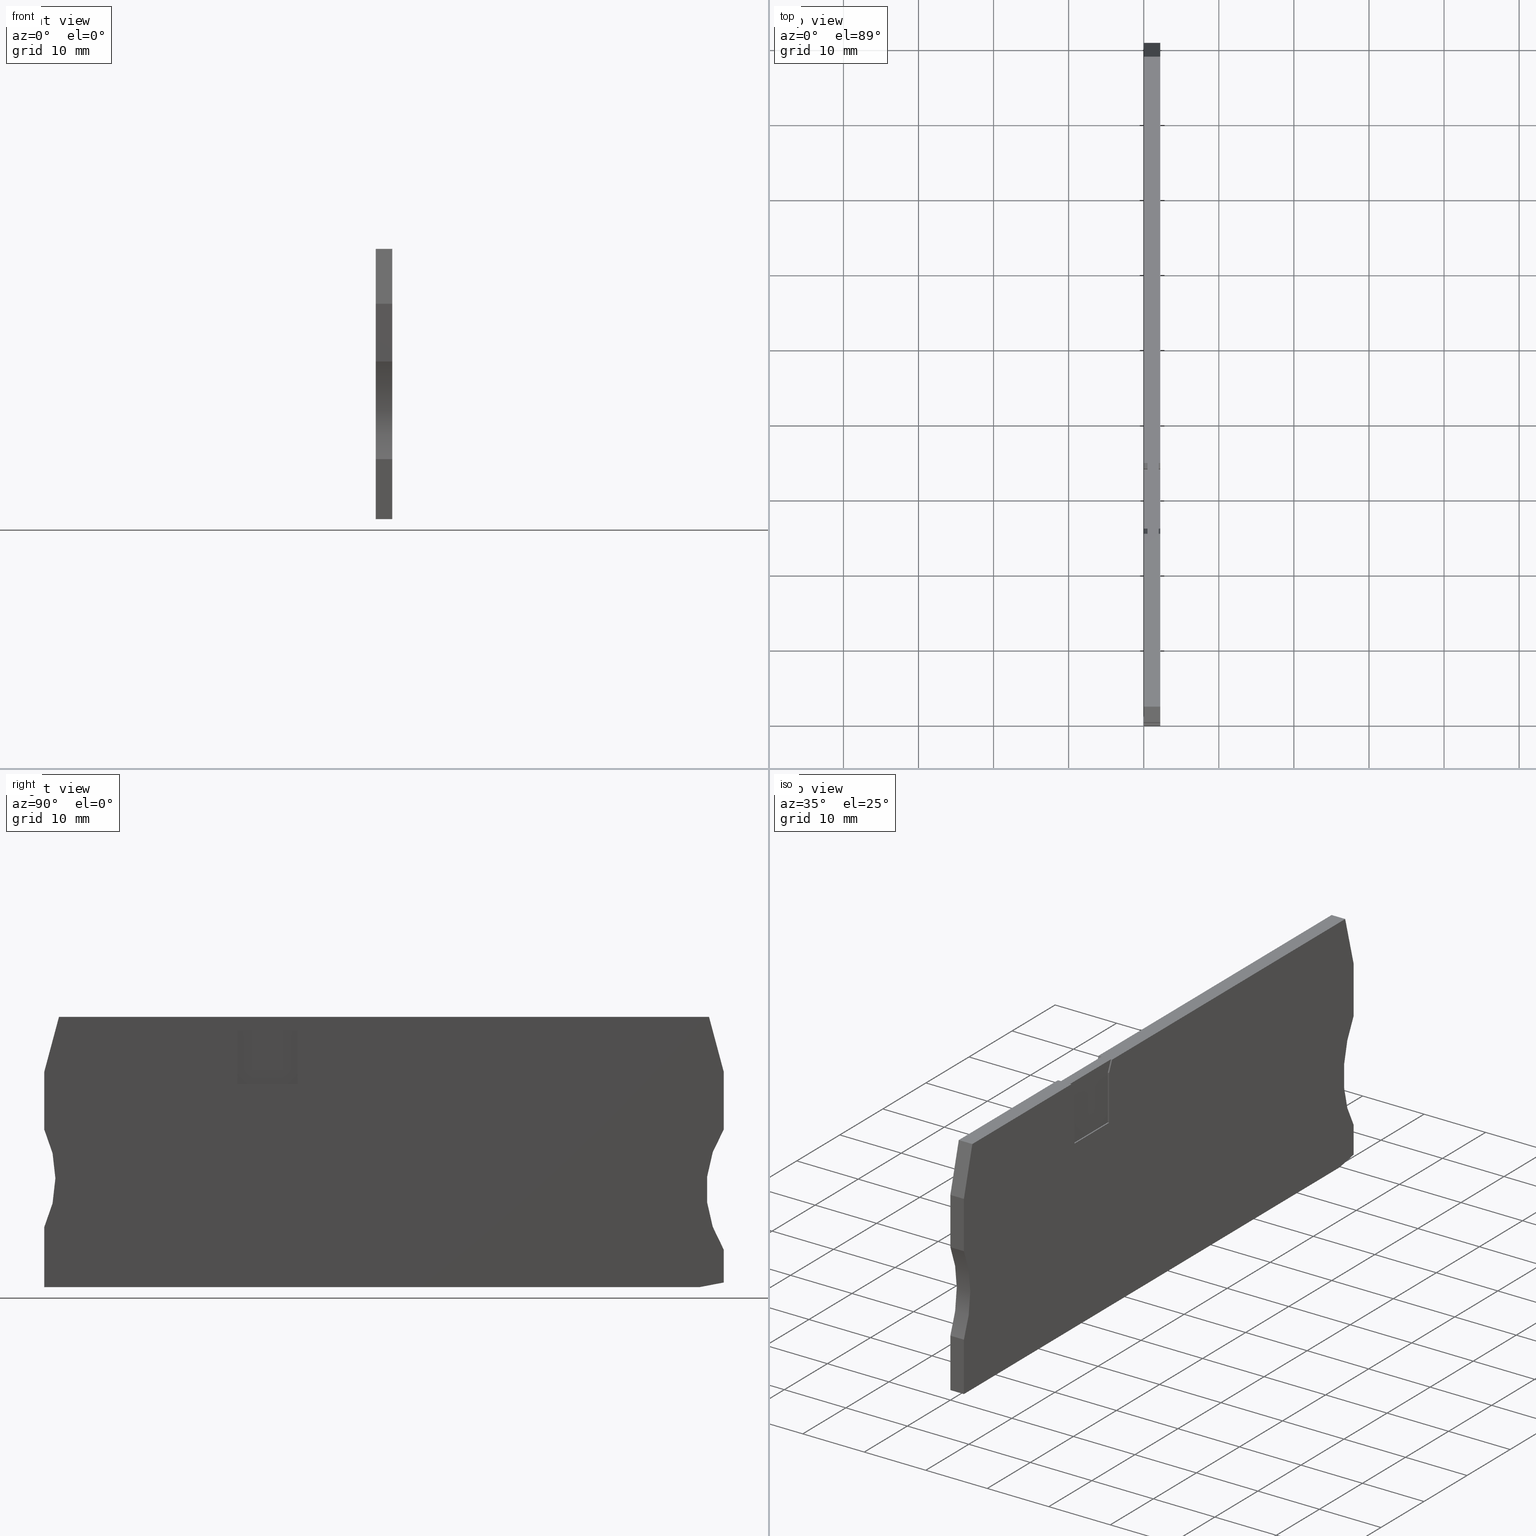
[diagram: canonical four-view strip — front | top / right | iso, engineering-drawing reading convention]
A machine part, canonical four-view strip (front | top / right | iso — engineering-drawing reading convention). The complete STEP part file that produces these views, byte-faithful:
ISO-10303-21;
HEADER;
FILE_DESCRIPTION(('Creo Elements/Direct Modeling STEP Export'),'2;1');
FILE_NAME(
'D:/temp/JobSpoolerServerData/JobServer Files/87b4124f-40e1-4de9-a269-f8
c5c639afc3/work/output/model.stp','2018-04-13T14:34:24',(''),(''),
'Creo Elements/Direct Modeling STEP processor for AP214 (Solid Model)',
'Creo Elements/Direct Modeling 18.1I  14-Aug-2016 (C) Parametric Technol
ogy GmbH','');
FILE_SCHEMA(('AUTOMOTIVE_DESIGN { 1 0 10303 214 1 1 1 1 }'));
ENDSEC;
DATA;
#10=CARTESIAN_POINT('',(-56.6917081414201,-5.44240052364707,55.87));
#20=DIRECTION('',(0.,0.,1.));
#30=DIRECTION('',(1.,0.,0.));
#40=AXIS2_PLACEMENT_3D('',#10,#20,#30);
#50=PLANE('',#40);
#60=CARTESIAN_POINT('',(0.932167221675279,-22.363129,55.87));
#70=DIRECTION('',(0.,1.,0.));
#80=VECTOR('',#70,1.);
#90=LINE('',#60,#80);
#100=CARTESIAN_POINT('',(0.932167221675279,-11.2000000000016,55.87));
#110=VERTEX_POINT('',#100);
#120=CARTESIAN_POINT('',(0.932167221675275,-3.90000000000191,55.87));
#130=VERTEX_POINT('',#120);
#140=EDGE_CURVE('',#110,#130,#90,.T.);
#150=ORIENTED_EDGE('',*,*,#140,.F.);
#160=CARTESIAN_POINT('',(-6.8712168983296,-22.363129,55.87));
#170=DIRECTION('',(0.389303997098191,0.92110933001646,0.));
#180=VECTOR('',#170,1.);
#190=LINE('',#160,#180);
#200=CARTESIAN_POINT('',(1.65066694098248,-2.19999999999897,55.87));
#210=VERTEX_POINT('',#200);
#220=EDGE_CURVE('',#130,#210,#190,.T.);
#230=ORIENTED_EDGE('',*,*,#220,.F.);
#240=CARTESIAN_POINT('',(31.631009,-2.19999999999897,55.87));
#250=DIRECTION('',(1.,0.,0.));
#260=VECTOR('',#250,1.);
#270=LINE('',#240,#260);
#280=CARTESIAN_POINT('',(55.771972992329,-2.19999999999897,55.87));
#290=VERTEX_POINT('',#280);
#300=EDGE_CURVE('',#210,#290,#270,.T.);
#310=ORIENTED_EDGE('',*,*,#300,.F.);
#320=CARTESIAN_POINT('',(61.1746671247789,-22.363129,55.87));
#330=DIRECTION('',(-0.258819045103196,0.965925826288887,0.));
#340=VECTOR('',#330,1.);
#350=LINE('',#320,#340);
#360=CARTESIAN_POINT('',(57.7321672216756,-9.51554445660334,55.87));
#370=VERTEX_POINT('',#360);
#380=EDGE_CURVE('',#370,#290,#350,.T.);
#390=ORIENTED_EDGE('',*,*,#380,.T.);
#400=CARTESIAN_POINT('',(57.7321672216756,-22.363129,55.87));
#410=DIRECTION('',(0.,-1.,0.));
#420=VECTOR('',#410,1.);
#430=LINE('',#400,#420);
#440=CARTESIAN_POINT('',(57.7321672216756,-17.2000000000024,55.87));
#450=VERTEX_POINT('',#440);
#460=EDGE_CURVE('',#370,#450,#430,.T.);
#470=ORIENTED_EDGE('',*,*,#460,.F.);
#480=CARTESIAN_POINT('',(70.4207447621217,-25.2000000000011,55.87));
#490=DIRECTION('',(0.,0.,1.));
#500=DIRECTION('',(1.,0.,0.));
#510=AXIS2_PLACEMENT_3D('',#480,#490,#500);
#520=CIRCLE('',#510,14.9999999999964);
#530=CARTESIAN_POINT('',(57.7321672216756,-33.1999999999997,55.87));
#540=VERTEX_POINT('',#530);
#550=EDGE_CURVE('',#450,#540,#520,.T.);
#560=ORIENTED_EDGE('',*,*,#550,.F.);
#570=CARTESIAN_POINT('',(57.7321672216756,-22.363129,55.87));
#580=DIRECTION('',(0.,1.,0.));
#590=VECTOR('',#580,1.);
#600=LINE('',#570,#590);
#610=CARTESIAN_POINT('',(57.7321672216756,-37.5829787234045,55.87));
#620=VERTEX_POINT('',#610);
#630=EDGE_CURVE('',#620,#540,#600,.T.);
#640=ORIENTED_EDGE('',*,*,#630,.T.);
#650=CARTESIAN_POINT('',(31.631009,-42.5810728509603,55.87));
#660=DIRECTION('',(0.98215519189214,0.188072270787892,0.));
#670=VECTOR('',#660,1.);
#680=LINE('',#650,#670);
#690=CARTESIAN_POINT('',(54.5099449994476,-38.2000000000014,55.87));
#700=VERTEX_POINT('',#690);
#710=EDGE_CURVE('',#700,#620,#680,.T.);
#720=ORIENTED_EDGE('',*,*,#710,.T.);
#730=CARTESIAN_POINT('',(31.631009,-38.2000000000014,55.87));
#740=DIRECTION('',(-1.,0.,0.));
#750=VECTOR('',#740,1.);
#760=LINE('',#730,#750);
#770=CARTESIAN_POINT('',(-32.767832778325,-38.2000000000014,55.87));
#780=VERTEX_POINT('',#770);
#790=EDGE_CURVE('',#700,#780,#760,.T.);
#800=ORIENTED_EDGE('',*,*,#790,.F.);
#810=CARTESIAN_POINT('',(-32.767832778325,-22.363129,55.87));
#820=DIRECTION('',(0.,1.,0.));
#830=VECTOR('',#820,1.);
#840=LINE('',#810,#830);
#850=CARTESIAN_POINT('',(-32.767832778325,-30.2000000000029,55.87));
#860=VERTEX_POINT('',#850);
#870=EDGE_CURVE('',#780,#860,#840,.T.);
#880=ORIENTED_EDGE('',*,*,#870,.F.);
#890=CARTESIAN_POINT('',(-46.2863386129204,-23.7000000000014,55.87));
#900=DIRECTION('',(0.,0.,1.));
#910=DIRECTION('',(1.,0.,0.));
#920=AXIS2_PLACEMENT_3D('',#890,#900,#910);
#930=CIRCLE('',#920,15.0000000000002);
#940=CARTESIAN_POINT('',(-32.767832778325,-17.1999999999999,55.87));
#950=VERTEX_POINT('',#940);
#960=EDGE_CURVE('',#860,#950,#930,.T.);
#970=ORIENTED_EDGE('',*,*,#960,.F.);
#980=CARTESIAN_POINT('',(-32.767832778325,-22.363129,55.87));
#990=DIRECTION('',(0.,1.,0.));
#1000=VECTOR('',#990,1.);
#1010=LINE('',#980,#1000);
#1020=CARTESIAN_POINT('',(-32.767832778325,-9.51554445660951,55.87));
#1030=VERTEX_POINT('',#1020);
#1040=EDGE_CURVE('',#950,#1030,#1010,.T.);
#1050=ORIENTED_EDGE('',*,*,#1040,.F.);
#1060=CARTESIAN_POINT('',(-36.2103326814236,-22.363129,55.87));
#1070=DIRECTION('',(-0.258819045102977,-0.965925826288946,0.));
#1080=VECTOR('',#1070,1.);
#1090=LINE('',#1060,#1080);
#1100=CARTESIAN_POINT('',(-30.8076385489786,-2.19999999999896,55.87));
#1110=VERTEX_POINT('',#1100);
#1120=EDGE_CURVE('',#1110,#1030,#1090,.T.);
#1130=ORIENTED_EDGE('',*,*,#1120,.T.);
#1140=CARTESIAN_POINT('',(-7.78633249760621,-2.19999999999896,55.87));
#1150=VERTEX_POINT('',#1140);
#1160=EDGE_CURVE('',#1110,#1150,#270,.T.);
#1170=ORIENTED_EDGE('',*,*,#1160,.F.);
#1180=CARTESIAN_POINT('',(0.735551341396391,-22.363129,55.87));
#1190=DIRECTION('',(0.389303997086196,-0.92110933002153,0.));
#1200=VECTOR('',#1190,1.);
#1210=LINE('',#1180,#1200);
#1220=CARTESIAN_POINT('',(-7.0678327783245,-3.90000000000332,55.87));
#1230=VERTEX_POINT('',#1220);
#1240=EDGE_CURVE('',#1150,#1230,#1210,.T.);
#1250=ORIENTED_EDGE('',*,*,#1240,.F.);
#1260=CARTESIAN_POINT('',(-7.0678327783245,-22.363129,55.87));
#1270=DIRECTION('',(0.,-1.,0.));
#1280=VECTOR('',#1270,1.);
#1290=LINE('',#1260,#1280);
#1300=CARTESIAN_POINT('',(-7.0678327783245,-11.2000000000016,55.87));
#1310=VERTEX_POINT('',#1300);
#1320=EDGE_CURVE('',#1230,#1310,#1290,.T.);
#1330=ORIENTED_EDGE('',*,*,#1320,.F.);
#1340=CARTESIAN_POINT('',(31.631009,-11.2000000000016,55.87));
#1350=DIRECTION('',(1.,0.,0.));
#1360=VECTOR('',#1350,1.);
#1370=LINE('',#1340,#1360);
#1380=EDGE_CURVE('',#1310,#110,#1370,.T.);
#1390=ORIENTED_EDGE('',*,*,#1380,.F.);
#1400=EDGE_LOOP('',(#1390,#1330,#1250,#1170,#1130,#1050,#970,#880,#800,
#720,#640,#560,#470,#390,#310,#230,#150));
#1410=FACE_OUTER_BOUND('',#1400,.T.);
#1420=ADVANCED_FACE('',(#1410),#50,.T.);
#1430=COLOUR_RGB('',0.560784339904785,0.588235318660736,
0.600000023841858);
#1440=FILL_AREA_STYLE_COLOUR('',#1430);
#1450=FILL_AREA_STYLE('',(#1440));
#1460=SURFACE_STYLE_FILL_AREA(#1450);
#1470=SURFACE_SIDE_STYLE('',(#1460));
#1480=SURFACE_STYLE_USAGE(.BOTH.,#1470);
#1490=PRESENTATION_STYLE_ASSIGNMENT((#1480));
#1500=CARTESIAN_POINT('',(-46.2863386129204,-23.7000000000014,53.4499976
));
#1510=DIRECTION('',(0.,0.,1.));
#1520=DIRECTION('',(1.,0.,0.));
#1530=AXIS2_PLACEMENT_3D('',#1500,#1510,#1520);
#1540=CYLINDRICAL_SURFACE('',#1530,15.0000000000002);
#1550=CARTESIAN_POINT('',(-32.767832778325,-17.1999999999999,53.4499976)
);
#1560=DIRECTION('',(0.,0.,1.));
#1570=VECTOR('',#1560,1.);
#1580=LINE('',#1550,#1570);
#1590=CARTESIAN_POINT('',(-32.767832778325,-17.1999999999999,53.67));
#1600=VERTEX_POINT('',#1590);
#1610=EDGE_CURVE('',#1600,#950,#1580,.T.);
#1620=ORIENTED_EDGE('',*,*,#1610,.F.);
#1630=ORIENTED_EDGE('',*,*,#960,.T.);
#1640=CARTESIAN_POINT('',(-32.767832778325,-30.2000000000029,53.4499976)
);
#1650=DIRECTION('',(0.,0.,1.));
#1660=VECTOR('',#1650,1.);
#1670=LINE('',#1640,#1660);
#1680=CARTESIAN_POINT('',(-32.767832778325,-30.2000000000029,53.67));
#1690=VERTEX_POINT('',#1680);
#1700=EDGE_CURVE('',#1690,#860,#1670,.T.);
#1710=ORIENTED_EDGE('',*,*,#1700,.T.);
#1720=CARTESIAN_POINT('',(-46.2863386129204,-23.7000000000014,53.67));
#1730=DIRECTION('',(0.,0.,1.));
#1740=DIRECTION('',(1.,0.,0.));
#1750=AXIS2_PLACEMENT_3D('',#1720,#1730,#1740);
#1760=CIRCLE('',#1750,15.0000000000002);
#1770=EDGE_CURVE('',#1690,#1600,#1760,.T.);
#1780=ORIENTED_EDGE('',*,*,#1770,.F.);
#1790=EDGE_LOOP('',(#1780,#1710,#1630,#1620));
#1800=FACE_OUTER_BOUND('',#1790,.T.);
#1810=ADVANCED_FACE('',(#1800),#1540,.F.);
#1820=COLOUR_RGB('',0.560784339904785,0.588235318660736,
0.600000023841858);
#1830=FILL_AREA_STYLE_COLOUR('',#1820);
#1840=FILL_AREA_STYLE('',(#1830));
#1850=SURFACE_STYLE_FILL_AREA(#1840);
#1860=SURFACE_SIDE_STYLE('',(#1850));
#1870=SURFACE_STYLE_USAGE(.BOTH.,#1860);
#1880=PRESENTATION_STYLE_ASSIGNMENT((#1870));
#1890=CARTESIAN_POINT('',(-7.0678327783245,-11.0000000000016,54.17));
#1900=DIRECTION('',(1.,0.,0.));
#1910=DIRECTION('',(0.,-1.,0.));
#1920=AXIS2_PLACEMENT_3D('',#1890,#1900,#1910);
#1930=PLANE('',#1920);
#1940=CARTESIAN_POINT('',(-7.0678327783245,-22.363129,54.17));
#1950=DIRECTION('',(0.,1.,0.));
#1960=VECTOR('',#1950,1.);
#1970=LINE('',#1940,#1960);
#1980=CARTESIAN_POINT('',(-7.0678327783245,-11.2000000000016,54.17));
#1990=VERTEX_POINT('',#1980);
#2000=CARTESIAN_POINT('',(-7.06783277832451,-3.90000000000332,54.17));
#2010=VERTEX_POINT('',#2000);
#2020=EDGE_CURVE('',#1990,#2010,#1970,.T.);
#2030=ORIENTED_EDGE('',*,*,#2020,.F.);
#2040=CARTESIAN_POINT('',(-7.0678327783245,-3.90000000000332,54.17));
#2050=DIRECTION('',(0.,0.,-1.));
#2060=VECTOR('',#2050,1.);
#2070=LINE('',#2040,#2060);
#2080=CARTESIAN_POINT('',(-7.06783277832451,-3.90000000000332,53.67));
#2090=VERTEX_POINT('',#2080);
#2100=EDGE_CURVE('',#2010,#2090,#2070,.T.);
#2110=ORIENTED_EDGE('',*,*,#2100,.F.);
#2120=CARTESIAN_POINT('',(-7.0678327783245,-22.363129,53.67));
#2130=DIRECTION('',(0.,-1.,0.));
#2140=VECTOR('',#2130,1.);
#2150=LINE('',#2120,#2140);
#2160=CARTESIAN_POINT('',(-7.0678327783245,-11.2000000000016,53.67));
#2170=VERTEX_POINT('',#2160);
#2180=EDGE_CURVE('',#2090,#2170,#2150,.T.);
#2190=ORIENTED_EDGE('',*,*,#2180,.F.);
#2200=CARTESIAN_POINT('',(-7.0678327783245,-11.2000000000016,53.67));
#2210=DIRECTION('',(0.,0.,1.));
#2220=VECTOR('',#2210,1.);
#2230=LINE('',#2200,#2220);
#2240=EDGE_CURVE('',#2170,#1990,#2230,.T.);
#2250=ORIENTED_EDGE('',*,*,#2240,.F.);
#2260=EDGE_LOOP('',(#2250,#2190,#2110,#2030));
#2270=FACE_OUTER_BOUND('',#2260,.T.);
#2280=ADVANCED_FACE('',(#2270),#1930,.T.);
#2290=COLOUR_RGB('',0.560784339904785,0.588235318660736,
0.600000023841858);
#2300=FILL_AREA_STYLE_COLOUR('',#2290);
#2310=FILL_AREA_STYLE('',(#2300));
#2320=SURFACE_STYLE_FILL_AREA(#2310);
#2330=SURFACE_SIDE_STYLE('',(#2320));
#2340=SURFACE_STYLE_USAGE(.BOTH.,#2330);
#2350=PRESENTATION_STYLE_ASSIGNMENT((#2340));
#2360=CARTESIAN_POINT('',(1.98753027032264,-18.8101307716224,53.67));
#2370=DIRECTION('',(0.,0.,-1.));
#2380=DIRECTION('',(-1.,0.,0.));
#2390=AXIS2_PLACEMENT_3D('',#2360,#2370,#2380);
#2400=PLANE('',#2390);
#2410=CARTESIAN_POINT('',(31.631009,-38.2000000000014,53.67));
#2420=DIRECTION('',(1.,0.,0.));
#2430=VECTOR('',#2420,1.);
#2440=LINE('',#2410,#2430);
#2450=CARTESIAN_POINT('',(-32.767832778325,-38.2000000000014,53.67));
#2460=VERTEX_POINT('',#2450);
#2470=CARTESIAN_POINT('',(54.5099449994476,-38.2000000000014,53.67));
#2480=VERTEX_POINT('',#2470);
#2490=EDGE_CURVE('',#2460,#2480,#2440,.T.);
#2500=ORIENTED_EDGE('',*,*,#2490,.F.);
#2510=CARTESIAN_POINT('',(31.631009,-42.5810728509603,53.67));
#2520=DIRECTION('',(-0.98215519189214,-0.188072270787892,0.));
#2530=VECTOR('',#2520,1.);
#2540=LINE('',#2510,#2530);
#2550=CARTESIAN_POINT('',(57.7321672216756,-37.5829787234045,53.67));
#2560=VERTEX_POINT('',#2550);
#2570=EDGE_CURVE('',#2560,#2480,#2540,.T.);
#2580=ORIENTED_EDGE('',*,*,#2570,.T.);
#2590=CARTESIAN_POINT('',(57.7321672216756,-22.363129,53.67));
#2600=DIRECTION('',(0.,-1.,0.));
#2610=VECTOR('',#2600,1.);
#2620=LINE('',#2590,#2610);
#2630=CARTESIAN_POINT('',(57.7321672216756,-33.1999999999997,53.67));
#2640=VERTEX_POINT('',#2630);
#2650=EDGE_CURVE('',#2640,#2560,#2620,.T.);
#2660=ORIENTED_EDGE('',*,*,#2650,.T.);
#2670=CARTESIAN_POINT('',(70.4207447621217,-25.2000000000011,53.67));
#2680=DIRECTION('',(0.,0.,1.));
#2690=DIRECTION('',(1.,0.,0.));
#2700=AXIS2_PLACEMENT_3D('',#2670,#2680,#2690);
#2710=CIRCLE('',#2700,14.9999999999964);
#2720=CARTESIAN_POINT('',(57.7321672216756,-17.2000000000024,53.67));
#2730=VERTEX_POINT('',#2720);
#2740=EDGE_CURVE('',#2730,#2640,#2710,.T.);
#2750=ORIENTED_EDGE('',*,*,#2740,.T.);
#2760=CARTESIAN_POINT('',(57.7321672216756,-22.363129,53.67));
#2770=DIRECTION('',(0.,1.,0.));
#2780=VECTOR('',#2770,1.);
#2790=LINE('',#2760,#2780);
#2800=CARTESIAN_POINT('',(57.7321672216756,-9.51554445660332,53.67));
#2810=VERTEX_POINT('',#2800);
#2820=EDGE_CURVE('',#2730,#2810,#2790,.T.);
#2830=ORIENTED_EDGE('',*,*,#2820,.F.);
#2840=CARTESIAN_POINT('',(61.1746671247789,-22.363129,53.67));
#2850=DIRECTION('',(0.258819045103196,-0.965925826288887,0.));
#2860=VECTOR('',#2850,1.);
#2870=LINE('',#2840,#2860);
#2880=CARTESIAN_POINT('',(55.771972992329,-2.19999999999897,53.67));
#2890=VERTEX_POINT('',#2880);
#2900=EDGE_CURVE('',#2890,#2810,#2870,.T.);
#2910=ORIENTED_EDGE('',*,*,#2900,.T.);
#2920=CARTESIAN_POINT('',(31.631009,-2.19999999999897,53.67));
#2930=DIRECTION('',(-1.,0.,0.));
#2940=VECTOR('',#2930,1.);
#2950=LINE('',#2920,#2940);
#2960=CARTESIAN_POINT('',(1.65066694098248,-2.19999999999897,53.67));
#2970=VERTEX_POINT('',#2960);
#2980=EDGE_CURVE('',#2890,#2970,#2950,.T.);
#2990=ORIENTED_EDGE('',*,*,#2980,.F.);
#3000=CARTESIAN_POINT('',(-6.8712168983296,-22.363129,53.67));
#3010=DIRECTION('',(0.389303997098191,0.92110933001646,0.));
#3020=VECTOR('',#3010,1.);
#3030=LINE('',#3000,#3020);
#3040=CARTESIAN_POINT('',(0.932167221675279,-3.90000000000325,53.67));
#3050=VERTEX_POINT('',#3040);
#3060=EDGE_CURVE('',#3050,#2970,#3030,.T.);
#3070=ORIENTED_EDGE('',*,*,#3060,.T.);
#3080=CARTESIAN_POINT('',(0.932167221675279,-22.363129,53.67));
#3090=DIRECTION('',(0.,1.,0.));
#3100=VECTOR('',#3090,1.);
#3110=LINE('',#3080,#3100);
#3120=CARTESIAN_POINT('',(0.932167221675279,-11.2000000000016,53.67));
#3130=VERTEX_POINT('',#3120);
#3140=EDGE_CURVE('',#3130,#3050,#3110,.T.);
#3150=ORIENTED_EDGE('',*,*,#3140,.T.);
#3160=CARTESIAN_POINT('',(31.631009,-11.2000000000016,53.67));
#3170=DIRECTION('',(1.,0.,0.));
#3180=VECTOR('',#3170,1.);
#3190=LINE('',#3160,#3180);
#3200=EDGE_CURVE('',#2170,#3130,#3190,.T.);
#3210=ORIENTED_EDGE('',*,*,#3200,.T.);
#3220=ORIENTED_EDGE('',*,*,#2180,.T.);
#3230=CARTESIAN_POINT('',(0.735551341396391,-22.363129,53.67));
#3240=DIRECTION('',(0.389303997086196,-0.92110933002153,0.));
#3250=VECTOR('',#3240,1.);
#3260=LINE('',#3230,#3250);
#3270=CARTESIAN_POINT('',(-7.78633249760621,-2.19999999999897,53.67));
#3280=VERTEX_POINT('',#3270);
#3290=EDGE_CURVE('',#3280,#2090,#3260,.T.);
#3300=ORIENTED_EDGE('',*,*,#3290,.T.);
#3310=CARTESIAN_POINT('',(-30.8076385489786,-2.19999999999896,53.67));
#3320=VERTEX_POINT('',#3310);
#3330=EDGE_CURVE('',#3280,#3320,#2950,.T.);
#3340=ORIENTED_EDGE('',*,*,#3330,.F.);
#3350=CARTESIAN_POINT('',(-36.2103326814236,-22.363129,53.67));
#3360=DIRECTION('',(0.258819045102977,0.965925826288946,0.));
#3370=VECTOR('',#3360,1.);
#3380=LINE('',#3350,#3370);
#3390=CARTESIAN_POINT('',(-32.767832778325,-9.51554445660954,53.67));
#3400=VERTEX_POINT('',#3390);
#3410=EDGE_CURVE('',#3400,#3320,#3380,.T.);
#3420=ORIENTED_EDGE('',*,*,#3410,.T.);
#3430=CARTESIAN_POINT('',(-32.767832778325,-22.363129,53.67));
#3440=DIRECTION('',(0.,-1.,0.));
#3450=VECTOR('',#3440,1.);
#3460=LINE('',#3430,#3450);
#3470=EDGE_CURVE('',#3400,#1600,#3460,.T.);
#3480=ORIENTED_EDGE('',*,*,#3470,.F.);
#3490=ORIENTED_EDGE('',*,*,#1770,.T.);
#3500=CARTESIAN_POINT('',(-32.767832778325,-22.363129,53.67));
#3510=DIRECTION('',(0.,-1.,0.));
#3520=VECTOR('',#3510,1.);
#3530=LINE('',#3500,#3520);
#3540=EDGE_CURVE('',#1690,#2460,#3530,.T.);
#3550=ORIENTED_EDGE('',*,*,#3540,.F.);
#3560=EDGE_LOOP('',(#3550,#3490,#3480,#3420,#3340,#3300,#3220,#3210,
#3150,#3070,#2990,#2910,#2830,#2750,#2660,#2580,#2500));
#3570=FACE_OUTER_BOUND('',#3560,.T.);
#3580=ADVANCED_FACE('',(#3570),#2400,.T.);
#3590=COLOUR_RGB('',0.560784339904785,0.588235318660736,
0.600000023841858);
#3600=FILL_AREA_STYLE_COLOUR('',#3590);
#3610=FILL_AREA_STYLE('',(#3600));
#3620=SURFACE_STYLE_FILL_AREA(#3610);
#3630=SURFACE_SIDE_STYLE('',(#3620));
#3640=SURFACE_STYLE_USAGE(.BOTH.,#3630);
#3650=PRESENTATION_STYLE_ASSIGNMENT((#3640));
#3660=CARTESIAN_POINT('',(47.6352266359532,-39.5164354313091,51.4699976)
);
#3670=DIRECTION('',(-0.188072270787892,0.98215519189214,0.));
#3680=DIRECTION('',(0.98215519189214,0.188072270787892,0.));
#3690=AXIS2_PLACEMENT_3D('',#3660,#3670,#3680);
#3700=PLANE('',#3690);
#3710=ORIENTED_EDGE('',*,*,#2570,.F.);
#3720=CARTESIAN_POINT('',(54.5099449994476,-38.2000000000014,53.67));
#3730=DIRECTION('',(0.,0.,-1.));
#3740=VECTOR('',#3730,1.);
#3750=LINE('',#3720,#3740);
#3760=EDGE_CURVE('',#700,#2480,#3750,.T.);
#3770=ORIENTED_EDGE('',*,*,#3760,.T.);
#3780=ORIENTED_EDGE('',*,*,#710,.F.);
#3790=CARTESIAN_POINT('',(57.7321672216756,-37.5829787234045,53.67));
#3800=DIRECTION('',(0.,0.,-1.));
#3810=VECTOR('',#3800,1.);
#3820=LINE('',#3790,#3810);
#3830=EDGE_CURVE('',#620,#2560,#3820,.T.);
#3840=ORIENTED_EDGE('',*,*,#3830,.F.);
#3850=EDGE_LOOP('',(#3840,#3780,#3770,#3710));
#3860=FACE_OUTER_BOUND('',#3850,.T.);
#3870=ADVANCED_FACE('',(#3860),#3700,.F.);
#3880=COLOUR_RGB('',0.560784339904785,0.588235318660736,
0.600000023841858);
#3890=FILL_AREA_STYLE_COLOUR('',#3880);
#3900=FILL_AREA_STYLE('',(#3890));
#3910=SURFACE_STYLE_FILL_AREA(#3900);
#3920=SURFACE_SIDE_STYLE('',(#3910));
#3930=SURFACE_STYLE_USAGE(.BOTH.,#3920);
#3940=PRESENTATION_STYLE_ASSIGNMENT((#3930));
#3950=CARTESIAN_POINT('',(-7.0678327783245,-3.90000000000332,54.17));
#3960=DIRECTION('',(0.92110933002153,0.389303997086196,0.));
#3970=DIRECTION('',(0.389303997086196,-0.92110933002153,0.));
#3980=AXIS2_PLACEMENT_3D('',#3950,#3960,#3970);
#3990=PLANE('',#3980);
#4000=CARTESIAN_POINT('',(-7.78633249760621,-2.19999999999897,53.67));
#4010=DIRECTION('',(0.,0.,-1.));
#4020=VECTOR('',#4010,1.);
#4030=LINE('',#4000,#4020);
#4040=CARTESIAN_POINT('',(-7.78633249760616,-2.19999999999908,54.17));
#4050=VERTEX_POINT('',#4040);
#4060=EDGE_CURVE('',#4050,#3280,#4030,.T.);
#4070=ORIENTED_EDGE('',*,*,#4060,.F.);
#4080=ORIENTED_EDGE('',*,*,#3290,.F.);
#4090=ORIENTED_EDGE('',*,*,#2100,.T.);
#4100=CARTESIAN_POINT('',(0.735551341396395,-22.363129,54.17));
#4110=DIRECTION('',(-0.389303997086196,0.92110933002153,0.));
#4120=VECTOR('',#4110,1.);
#4130=LINE('',#4100,#4120);
#4140=EDGE_CURVE('',#2010,#4050,#4130,.T.);
#4150=ORIENTED_EDGE('',*,*,#4140,.F.);
#4160=EDGE_LOOP('',(#4150,#4090,#4080,#4070));
#4170=FACE_OUTER_BOUND('',#4160,.T.);
#4180=ADVANCED_FACE('',(#4170),#3990,.T.);
#4190=COLOUR_RGB('',0.560784339904785,0.588235318660736,
0.600000023841858);
#4200=FILL_AREA_STYLE_COLOUR('',#4190);
#4210=FILL_AREA_STYLE('',(#4200));
#4220=SURFACE_STYLE_FILL_AREA(#4210);
#4230=SURFACE_SIDE_STYLE('',(#4220));
#4240=SURFACE_STYLE_USAGE(.BOTH.,#4230);
#4250=PRESENTATION_STYLE_ASSIGNMENT((#4240));
#4260=CARTESIAN_POINT('',(-3.06783277831202,-6.7000000000003,54.17));
#4270=DIRECTION('',(0.,0.,1.));
#4280=DIRECTION('',(1.,0.,0.));
#4290=AXIS2_PLACEMENT_3D('',#4260,#4270,#4280);
#4300=PLANE('',#4290);
#4310=CARTESIAN_POINT('',(31.631009,-11.2000000000016,54.17));
#4320=DIRECTION('',(-1.,0.,0.));
#4330=VECTOR('',#4320,1.);
#4340=LINE('',#4310,#4330);
#4350=CARTESIAN_POINT('',(0.932167221675279,-11.2000000000016,54.17));
#4360=VERTEX_POINT('',#4350);
#4370=EDGE_CURVE('',#4360,#1990,#4340,.T.);
#4380=ORIENTED_EDGE('',*,*,#4370,.T.);
#4390=CARTESIAN_POINT('',(0.932167221675279,-22.363129,54.17));
#4400=DIRECTION('',(0.,-1.,0.));
#4410=VECTOR('',#4400,1.);
#4420=LINE('',#4390,#4410);
#4430=CARTESIAN_POINT('',(0.932167221675279,-3.90000000000325,54.17));
#4440=VERTEX_POINT('',#4430);
#4450=EDGE_CURVE('',#4440,#4360,#4420,.T.);
#4460=ORIENTED_EDGE('',*,*,#4450,.T.);
#4470=CARTESIAN_POINT('',(-6.87121689832903,-22.363129,54.17));
#4480=DIRECTION('',(-0.389303997098191,-0.92110933001646,0.));
#4490=VECTOR('',#4480,1.);
#4500=LINE('',#4470,#4490);
#4510=CARTESIAN_POINT('',(1.65066694098248,-2.19999999999897,54.17));
#4520=VERTEX_POINT('',#4510);
#4530=EDGE_CURVE('',#4520,#4440,#4500,.T.);
#4540=ORIENTED_EDGE('',*,*,#4530,.T.);
#4550=CARTESIAN_POINT('',(31.631009,-2.19999999999897,54.17));
#4560=DIRECTION('',(1.,0.,0.));
#4570=VECTOR('',#4560,1.);
#4580=LINE('',#4550,#4570);
#4590=EDGE_CURVE('',#4050,#4520,#4580,.T.);
#4600=ORIENTED_EDGE('',*,*,#4590,.T.);
#4610=ORIENTED_EDGE('',*,*,#4140,.T.);
#4620=ORIENTED_EDGE('',*,*,#2020,.T.);
#4630=EDGE_LOOP('',(#4620,#4610,#4600,#4540,#4460,#4380));
#4640=FACE_OUTER_BOUND('',#4630,.T.);
#4650=ADVANCED_FACE('',(#4640),#4300,.F.);
#4660=COLOUR_RGB('',0.560784339904785,0.588235318660736,
0.600000023841858);
#4670=FILL_AREA_STYLE_COLOUR('',#4660);
#4680=FILL_AREA_STYLE('',(#4670));
#4690=SURFACE_STYLE_FILL_AREA(#4680);
#4700=SURFACE_SIDE_STYLE('',(#4690));
#4710=SURFACE_STYLE_USAGE(.BOTH.,#4700);
#4720=PRESENTATION_STYLE_ASSIGNMENT((#4710));
#4730=CARTESIAN_POINT('',(1.65066694098248,-2.19999999999897,54.17));
#4740=DIRECTION('',(-0.92110933001646,0.389303997098191,0.));
#4750=DIRECTION('',(0.389303997098191,0.92110933001646,0.));
#4760=AXIS2_PLACEMENT_3D('',#4730,#4740,#4750);
#4770=PLANE('',#4760);
#4780=CARTESIAN_POINT('',(0.932167221675279,-3.90000000000325,54.17));
#4790=DIRECTION('',(0.,0.,-1.));
#4800=VECTOR('',#4790,1.);
#4810=LINE('',#4780,#4800);
#4820=EDGE_CURVE('',#4440,#3050,#4810,.T.);
#4830=ORIENTED_EDGE('',*,*,#4820,.F.);
#4840=ORIENTED_EDGE('',*,*,#3060,.F.);
#4850=CARTESIAN_POINT('',(1.65066694098248,-2.19999999999897,53.67));
#4860=DIRECTION('',(0.,0.,1.));
#4870=VECTOR('',#4860,1.);
#4880=LINE('',#4850,#4870);
#4890=EDGE_CURVE('',#2970,#4520,#4880,.T.);
#4900=ORIENTED_EDGE('',*,*,#4890,.F.);
#4910=ORIENTED_EDGE('',*,*,#4530,.F.);
#4920=EDGE_LOOP('',(#4910,#4900,#4840,#4830));
#4930=FACE_OUTER_BOUND('',#4920,.T.);
#4940=ADVANCED_FACE('',(#4930),#4770,.T.);
#4950=COLOUR_RGB('',0.560784339904785,0.588235318660736,
0.600000023841858);
#4960=FILL_AREA_STYLE_COLOUR('',#4950);
#4970=FILL_AREA_STYLE('',(#4960));
#4980=SURFACE_STYLE_FILL_AREA(#4970);
#4990=SURFACE_SIDE_STYLE('',(#4980));
#5000=SURFACE_STYLE_USAGE(.BOTH.,#4990);
#5010=PRESENTATION_STYLE_ASSIGNMENT((#5000));
#5020=CARTESIAN_POINT('',(0.932167221675279,-3.90000000000325,54.17));
#5030=DIRECTION('',(-1.,0.,0.));
#5040=DIRECTION('',(0.,1.,0.));
#5050=AXIS2_PLACEMENT_3D('',#5020,#5030,#5040);
#5060=PLANE('',#5050);
#5070=CARTESIAN_POINT('',(0.932167221675279,-11.2000000000016,53.67));
#5080=DIRECTION('',(0.,0.,1.));
#5090=VECTOR('',#5080,1.);
#5100=LINE('',#5070,#5090);
#5110=EDGE_CURVE('',#3130,#4360,#5100,.T.);
#5120=ORIENTED_EDGE('',*,*,#5110,.T.);
#5130=ORIENTED_EDGE('',*,*,#3140,.F.);
#5140=ORIENTED_EDGE('',*,*,#4820,.T.);
#5150=ORIENTED_EDGE('',*,*,#4450,.F.);
#5160=EDGE_LOOP('',(#5150,#5140,#5130,#5120));
#5170=FACE_OUTER_BOUND('',#5160,.T.);
#5180=ADVANCED_FACE('',(#5170),#5060,.T.);
#5190=COLOUR_RGB('',0.560784339904785,0.588235318660736,
0.600000023841858);
#5200=FILL_AREA_STYLE_COLOUR('',#5190);
#5210=FILL_AREA_STYLE('',(#5200));
#5220=SURFACE_STYLE_FILL_AREA(#5210);
#5230=SURFACE_SIDE_STYLE('',(#5220));
#5240=SURFACE_STYLE_USAGE(.BOTH.,#5230);
#5250=PRESENTATION_STYLE_ASSIGNMENT((#5240));
#5260=CARTESIAN_POINT('',(0.732167221675287,-11.2000000000016,54.17));
#5270=DIRECTION('',(-0.,1.,0.));
#5280=DIRECTION('',(1.,0.,0.));
#5290=AXIS2_PLACEMENT_3D('',#5260,#5270,#5280);
#5300=PLANE('',#5290);
#5310=ORIENTED_EDGE('',*,*,#2240,.T.);
#5320=ORIENTED_EDGE('',*,*,#3200,.F.);
#5330=ORIENTED_EDGE('',*,*,#5110,.F.);
#5340=ORIENTED_EDGE('',*,*,#4370,.F.);
#5350=EDGE_LOOP('',(#5340,#5330,#5320,#5310));
#5360=FACE_OUTER_BOUND('',#5350,.T.);
#5370=ADVANCED_FACE('',(#5360),#5300,.T.);
#5380=COLOUR_RGB('',0.560784339904785,0.588235318660736,
0.600000023841858);
#5390=FILL_AREA_STYLE_COLOUR('',#5380);
#5400=FILL_AREA_STYLE('',(#5390));
#5410=SURFACE_STYLE_FILL_AREA(#5400);
#5420=SURFACE_SIDE_STYLE('',(#5410));
#5430=SURFACE_STYLE_USAGE(.BOTH.,#5420);
#5440=PRESENTATION_STYLE_ASSIGNMENT((#5430));
#5450=CARTESIAN_POINT('',(36.7321672216756,-38.2000000000014,53.67));
#5460=DIRECTION('',(-0.,-1.,-0.));
#5470=DIRECTION('',(-1.,0.,0.));
#5480=AXIS2_PLACEMENT_3D('',#5450,#5460,#5470);
#5490=PLANE('',#5480);
#5500=ORIENTED_EDGE('',*,*,#790,.T.);
#5510=ORIENTED_EDGE('',*,*,#3760,.F.);
#5520=ORIENTED_EDGE('',*,*,#2490,.T.);
#5530=CARTESIAN_POINT('',(-32.767832778325,-38.2000000000014,53.67));
#5540=DIRECTION('',(0.,0.,1.));
#5550=VECTOR('',#5540,1.);
#5560=LINE('',#5530,#5550);
#5570=EDGE_CURVE('',#2460,#780,#5560,.T.);
#5580=ORIENTED_EDGE('',*,*,#5570,.F.);
#5590=EDGE_LOOP('',(#5580,#5520,#5510,#5500));
#5600=FACE_OUTER_BOUND('',#5590,.T.);
#5610=ADVANCED_FACE('',(#5600),#5490,.T.);
#5620=COLOUR_RGB('',0.560784339904785,0.588235318660736,
0.600000023841858);
#5630=FILL_AREA_STYLE_COLOUR('',#5620);
#5640=FILL_AREA_STYLE('',(#5630));
#5650=SURFACE_STYLE_FILL_AREA(#5640);
#5660=SURFACE_SIDE_STYLE('',(#5650));
#5670=SURFACE_STYLE_USAGE(.BOTH.,#5660);
#5680=PRESENTATION_STYLE_ASSIGNMENT((#5670));
#5690=CARTESIAN_POINT('',(-32.767832778325,-38.2000000000014,53.67));
#5700=DIRECTION('',(-1.,0.,0.));
#5710=DIRECTION('',(0.,1.,0.));
#5720=AXIS2_PLACEMENT_3D('',#5690,#5700,#5710);
#5730=PLANE('',#5720);
#5740=ORIENTED_EDGE('',*,*,#1040,.T.);
#5750=ORIENTED_EDGE('',*,*,#1610,.T.);
#5760=ORIENTED_EDGE('',*,*,#3470,.T.);
#5770=CARTESIAN_POINT('',(-32.767832778325,-9.51554445660951,53.67));
#5780=DIRECTION('',(0.,0.,1.));
#5790=VECTOR('',#5780,1.);
#5800=LINE('',#5770,#5790);
#5810=EDGE_CURVE('',#3400,#1030,#5800,.T.);
#5820=ORIENTED_EDGE('',*,*,#5810,.F.);
#5830=EDGE_LOOP('',(#5820,#5760,#5750,#5740));
#5840=FACE_OUTER_BOUND('',#5830,.T.);
#5850=ADVANCED_FACE('',(#5840),#5730,.T.);
#5860=COLOUR_RGB('',0.560784339904785,0.588235318660736,
0.600000023841858);
#5870=FILL_AREA_STYLE_COLOUR('',#5860);
#5880=FILL_AREA_STYLE('',(#5870));
#5890=SURFACE_STYLE_FILL_AREA(#5880);
#5900=SURFACE_SIDE_STYLE('',(#5890));
#5910=SURFACE_STYLE_USAGE(.BOTH.,#5900);
#5920=PRESENTATION_STYLE_ASSIGNMENT((#5910));
#5930=CARTESIAN_POINT('',(-32.767832778325,-2.19999999999897,53.67));
#5940=DIRECTION('',(-0.,1.,0.));
#5950=DIRECTION('',(1.,0.,0.));
#5960=AXIS2_PLACEMENT_3D('',#5930,#5940,#5950);
#5970=PLANE('',#5960);
#5980=ORIENTED_EDGE('',*,*,#3330,.T.);
#5990=ORIENTED_EDGE('',*,*,#4060,.T.);
#6000=ORIENTED_EDGE('',*,*,#4590,.F.);
#6010=ORIENTED_EDGE('',*,*,#4890,.T.);
#6020=ORIENTED_EDGE('',*,*,#2980,.T.);
#6030=CARTESIAN_POINT('',(55.771972992329,-2.19999999999897,53.67));
#6040=DIRECTION('',(0.,0.,-1.));
#6050=VECTOR('',#6040,1.);
#6060=LINE('',#6030,#6050);
#6070=EDGE_CURVE('',#290,#2890,#6060,.T.);
#6080=ORIENTED_EDGE('',*,*,#6070,.T.);
#6090=ORIENTED_EDGE('',*,*,#300,.T.);
#6100=CARTESIAN_POINT('',(1.65066694098248,-2.19999999999897,53.67));
#6110=DIRECTION('',(0.,0.,-1.));
#6120=VECTOR('',#6110,1.);
#6130=LINE('',#6100,#6120);
#6140=CARTESIAN_POINT('',(1.65066694098248,-2.19999999999897,55.67));
#6150=VERTEX_POINT('',#6140);
#6160=EDGE_CURVE('',#210,#6150,#6130,.T.);
#6170=ORIENTED_EDGE('',*,*,#6160,.F.);
#6180=CARTESIAN_POINT('',(31.631009,-2.19999999999897,55.67));
#6190=DIRECTION('',(1.,0.,0.));
#6200=VECTOR('',#6190,1.);
#6210=LINE('',#6180,#6200);
#6220=CARTESIAN_POINT('',(-7.78633249760616,-2.19999999999908,55.67));
#6230=VERTEX_POINT('',#6220);
#6240=EDGE_CURVE('',#6230,#6150,#6210,.T.);
#6250=ORIENTED_EDGE('',*,*,#6240,.T.);
#6260=CARTESIAN_POINT('',(-7.78633249760621,-2.19999999999897,53.67));
#6270=DIRECTION('',(0.,0.,1.));
#6280=VECTOR('',#6270,1.);
#6290=LINE('',#6260,#6280);
#6300=EDGE_CURVE('',#6230,#1150,#6290,.T.);
#6310=ORIENTED_EDGE('',*,*,#6300,.F.);
#6320=ORIENTED_EDGE('',*,*,#1160,.T.);
#6330=CARTESIAN_POINT('',(-30.8076385489786,-2.19999999999897,53.67));
#6340=DIRECTION('',(0.,0.,-1.));
#6350=VECTOR('',#6340,1.);
#6360=LINE('',#6330,#6350);
#6370=EDGE_CURVE('',#1110,#3320,#6360,.T.);
#6380=ORIENTED_EDGE('',*,*,#6370,.F.);
#6390=EDGE_LOOP('',(#6380,#6320,#6310,#6250,#6170,#6090,#6080,#6020,
#6010,#6000,#5990,#5980));
#6400=FACE_OUTER_BOUND('',#6390,.T.);
#6410=ADVANCED_FACE('',(#6400),#5970,.T.);
#6420=COLOUR_RGB('',0.560784339904785,0.588235318660736,
0.600000023841858);
#6430=FILL_AREA_STYLE_COLOUR('',#6420);
#6440=FILL_AREA_STYLE('',(#6430));
#6450=SURFACE_STYLE_FILL_AREA(#6440);
#6460=SURFACE_SIDE_STYLE('',(#6450));
#6470=SURFACE_STYLE_USAGE(.BOTH.,#6460);
#6480=PRESENTATION_STYLE_ASSIGNMENT((#6470));
#6490=CARTESIAN_POINT('',(57.7321672216756,-35.9296193848504,51.4699976)
);
#6500=DIRECTION('',(-1.,0.,0.));
#6510=DIRECTION('',(0.,1.,0.));
#6520=AXIS2_PLACEMENT_3D('',#6490,#6500,#6510);
#6530=PLANE('',#6520);
#6540=ORIENTED_EDGE('',*,*,#3830,.T.);
#6550=ORIENTED_EDGE('',*,*,#630,.F.);
#6560=CARTESIAN_POINT('',(57.7321672216756,-33.1999999999997,53.4499976)
);
#6570=DIRECTION('',(0.,0.,1.));
#6580=VECTOR('',#6570,1.);
#6590=LINE('',#6560,#6580);
#6600=EDGE_CURVE('',#2640,#540,#6590,.T.);
#6610=ORIENTED_EDGE('',*,*,#6600,.T.);
#6620=ORIENTED_EDGE('',*,*,#2650,.F.);
#6630=EDGE_LOOP('',(#6620,#6610,#6550,#6540));
#6640=FACE_OUTER_BOUND('',#6630,.T.);
#6650=ADVANCED_FACE('',(#6640),#6530,.F.);
#6660=COLOUR_RGB('',0.560784339904785,0.588235318660736,
0.600000023841858);
#6670=FILL_AREA_STYLE_COLOUR('',#6660);
#6680=FILL_AREA_STYLE('',(#6670));
#6690=SURFACE_STYLE_FILL_AREA(#6680);
#6700=SURFACE_SIDE_STYLE('',(#6690));
#6710=SURFACE_STYLE_USAGE(.BOTH.,#6700);
#6720=PRESENTATION_STYLE_ASSIGNMENT((#6710));
#6730=CARTESIAN_POINT('',(57.7321672216756,-2.19999999999897,53.67));
#6740=DIRECTION('',(1.,0.,0.));
#6750=DIRECTION('',(0.,-1.,0.));
#6760=AXIS2_PLACEMENT_3D('',#6730,#6740,#6750);
#6770=PLANE('',#6760);
#6780=ORIENTED_EDGE('',*,*,#2820,.T.);
#6790=CARTESIAN_POINT('',(57.7321672216756,-17.2000000000024,53.4499976)
);
#6800=DIRECTION('',(0.,0.,1.));
#6810=VECTOR('',#6800,1.);
#6820=LINE('',#6790,#6810);
#6830=EDGE_CURVE('',#2730,#450,#6820,.T.);
#6840=ORIENTED_EDGE('',*,*,#6830,.F.);
#6850=ORIENTED_EDGE('',*,*,#460,.T.);
#6860=CARTESIAN_POINT('',(57.7321672216756,-9.51554445660334,53.67));
#6870=DIRECTION('',(0.,0.,-1.));
#6880=VECTOR('',#6870,1.);
#6890=LINE('',#6860,#6880);
#6900=EDGE_CURVE('',#370,#2810,#6890,.T.);
#6910=ORIENTED_EDGE('',*,*,#6900,.F.);
#6920=EDGE_LOOP('',(#6910,#6850,#6840,#6780));
#6930=FACE_OUTER_BOUND('',#6920,.T.);
#6940=ADVANCED_FACE('',(#6930),#6770,.T.);
#6950=COLOUR_RGB('',0.560784339904785,0.588235318660736,
0.600000023841858);
#6960=FILL_AREA_STYLE_COLOUR('',#6950);
#6970=FILL_AREA_STYLE('',(#6960));
#6980=SURFACE_STYLE_FILL_AREA(#6970);
#6990=SURFACE_SIDE_STYLE('',(#6980));
#7000=SURFACE_STYLE_USAGE(.BOTH.,#6990);
#7010=PRESENTATION_STYLE_ASSIGNMENT((#7000));
#7020=ORIENTED_EDGE('',*,*,#5570,.T.);
#7030=ORIENTED_EDGE('',*,*,#3540,.T.);
#7040=ORIENTED_EDGE('',*,*,#1700,.F.);
#7050=ORIENTED_EDGE('',*,*,#870,.T.);
#7060=EDGE_LOOP('',(#7050,#7040,#7030,#7020));
#7070=FACE_OUTER_BOUND('',#7060,.T.);
#7080=ADVANCED_FACE('',(#7070),#5730,.T.);
#7090=COLOUR_RGB('',0.560784339904785,0.588235318660736,
0.600000023841858);
#7100=FILL_AREA_STYLE_COLOUR('',#7090);
#7110=FILL_AREA_STYLE('',(#7100));
#7120=SURFACE_STYLE_FILL_AREA(#7110);
#7130=SURFACE_SIDE_STYLE('',(#7120));
#7140=SURFACE_STYLE_USAGE(.BOTH.,#7130);
#7150=PRESENTATION_STYLE_ASSIGNMENT((#7140));
#7160=CARTESIAN_POINT('',(70.4207447621217,-25.2000000000011,53.4499976)
);
#7170=DIRECTION('',(0.,0.,1.));
#7180=DIRECTION('',(1.,0.,0.));
#7190=AXIS2_PLACEMENT_3D('',#7160,#7170,#7180);
#7200=CYLINDRICAL_SURFACE('',#7190,14.9999999999964);
#7210=ORIENTED_EDGE('',*,*,#6830,.T.);
#7220=ORIENTED_EDGE('',*,*,#2740,.F.);
#7230=ORIENTED_EDGE('',*,*,#6600,.F.);
#7240=ORIENTED_EDGE('',*,*,#550,.T.);
#7250=EDGE_LOOP('',(#7240,#7230,#7220,#7210));
#7260=FACE_OUTER_BOUND('',#7250,.T.);
#7270=ADVANCED_FACE('',(#7260),#7200,.F.);
#7280=COLOUR_RGB('',0.560784339904785,0.588235318660736,
0.600000023841858);
#7290=FILL_AREA_STYLE_COLOUR('',#7280);
#7300=FILL_AREA_STYLE('',(#7290));
#7310=SURFACE_STYLE_FILL_AREA(#7300);
#7320=SURFACE_SIDE_STYLE('',(#7310));
#7330=SURFACE_STYLE_USAGE(.BOTH.,#7320);
#7340=PRESENTATION_STYLE_ASSIGNMENT((#7330));
#7350=CARTESIAN_POINT('',(-30.4274974556479,-0.781294125646649,
53.4499976));
#7360=DIRECTION('',(0.965925826288946,-0.258819045102977,0.));
#7370=DIRECTION('',(-0.258819045102977,-0.965925826288946,0.));
#7380=AXIS2_PLACEMENT_3D('',#7350,#7360,#7370);
#7390=PLANE('',#7380);
#7400=ORIENTED_EDGE('',*,*,#5810,.T.);
#7410=ORIENTED_EDGE('',*,*,#3410,.F.);
#7420=ORIENTED_EDGE('',*,*,#6370,.T.);
#7430=ORIENTED_EDGE('',*,*,#1120,.F.);
#7440=EDGE_LOOP('',(#7430,#7420,#7410,#7400));
#7450=FACE_OUTER_BOUND('',#7440,.T.);
#7460=ADVANCED_FACE('',(#7450),#7390,.F.);
#7470=COLOUR_RGB('',0.560784339904785,0.588235318660736,
0.600000023841858);
#7480=FILL_AREA_STYLE_COLOUR('',#7470);
#7490=FILL_AREA_STYLE('',(#7480));
#7500=SURFACE_STYLE_FILL_AREA(#7490);
#7510=SURFACE_SIDE_STYLE('',(#7500));
#7520=SURFACE_STYLE_USAGE(.BOTH.,#7510);
#7530=PRESENTATION_STYLE_ASSIGNMENT((#7520));
#7540=CARTESIAN_POINT('',(58.6735656418705,-13.0288911909262,53.4499976)
);
#7550=DIRECTION('',(-0.965925826288887,-0.258819045103196,-0.));
#7560=DIRECTION('',(-0.258819045103196,0.965925826288887,0.));
#7570=AXIS2_PLACEMENT_3D('',#7540,#7550,#7560);
#7580=PLANE('',#7570);
#7590=ORIENTED_EDGE('',*,*,#6900,.T.);
#7600=ORIENTED_EDGE('',*,*,#380,.F.);
#7610=ORIENTED_EDGE('',*,*,#6070,.F.);
#7620=ORIENTED_EDGE('',*,*,#2900,.F.);
#7630=EDGE_LOOP('',(#7620,#7610,#7600,#7590));
#7640=FACE_OUTER_BOUND('',#7630,.T.);
#7650=ADVANCED_FACE('',(#7640),#7580,.F.);
#7660=COLOUR_RGB('',0.560784339904785,0.588235318660736,
0.600000023841858);
#7670=FILL_AREA_STYLE_COLOUR('',#7660);
#7680=FILL_AREA_STYLE('',(#7670));
#7690=SURFACE_STYLE_FILL_AREA(#7680);
#7700=SURFACE_SIDE_STYLE('',(#7690));
#7710=SURFACE_STYLE_USAGE(.BOTH.,#7700);
#7720=PRESENTATION_STYLE_ASSIGNMENT((#7710));
#7730=CARTESIAN_POINT('',(-3.06783277831202,-6.7000000000003,55.67));
#7740=DIRECTION('',(0.,0.,1.));
#7750=DIRECTION('',(1.,0.,0.));
#7760=AXIS2_PLACEMENT_3D('',#7730,#7740,#7750);
#7770=PLANE('',#7760);
#7780=CARTESIAN_POINT('',(31.631009,-11.2000000000016,55.67));
#7790=DIRECTION('',(-1.,0.,0.));
#7800=VECTOR('',#7790,1.);
#7810=LINE('',#7780,#7800);
#7820=CARTESIAN_POINT('',(0.932167221675279,-11.2000000000016,55.67));
#7830=VERTEX_POINT('',#7820);
#7840=CARTESIAN_POINT('',(-7.0678327783245,-11.2000000000016,55.67));
#7850=VERTEX_POINT('',#7840);
#7860=EDGE_CURVE('',#7830,#7850,#7810,.T.);
#7870=ORIENTED_EDGE('',*,*,#7860,.F.);
#7880=CARTESIAN_POINT('',(-7.0678327783245,-22.363129,55.67));
#7890=DIRECTION('',(0.,1.,0.));
#7900=VECTOR('',#7890,1.);
#7910=LINE('',#7880,#7900);
#7920=CARTESIAN_POINT('',(-7.0678327783245,-3.90000000000332,55.67));
#7930=VERTEX_POINT('',#7920);
#7940=EDGE_CURVE('',#7850,#7930,#7910,.T.);
#7950=ORIENTED_EDGE('',*,*,#7940,.F.);
#7960=CARTESIAN_POINT('',(0.735551341396395,-22.363129,55.67));
#7970=DIRECTION('',(-0.389303997086196,0.92110933002153,0.));
#7980=VECTOR('',#7970,1.);
#7990=LINE('',#7960,#7980);
#8000=EDGE_CURVE('',#7930,#6230,#7990,.T.);
#8010=ORIENTED_EDGE('',*,*,#8000,.F.);
#8020=ORIENTED_EDGE('',*,*,#6240,.F.);
#8030=CARTESIAN_POINT('',(-6.87121689832903,-22.363129,55.67));
#8040=DIRECTION('',(-0.389303997098191,-0.92110933001646,0.));
#8050=VECTOR('',#8040,1.);
#8060=LINE('',#8030,#8050);
#8070=CARTESIAN_POINT('',(0.932167221675279,-3.90000000000325,55.67));
#8080=VERTEX_POINT('',#8070);
#8090=EDGE_CURVE('',#6150,#8080,#8060,.T.);
#8100=ORIENTED_EDGE('',*,*,#8090,.F.);
#8110=CARTESIAN_POINT('',(0.932167221675279,-22.363129,55.67));
#8120=DIRECTION('',(0.,-1.,0.));
#8130=VECTOR('',#8120,1.);
#8140=LINE('',#8110,#8130);
#8150=EDGE_CURVE('',#8080,#7830,#8140,.T.);
#8160=ORIENTED_EDGE('',*,*,#8150,.F.);
#8170=EDGE_LOOP('',(#8160,#8100,#8020,#8010,#7950,#7870));
#8180=FACE_OUTER_BOUND('',#8170,.T.);
#8190=ADVANCED_FACE('',(#8180),#7770,.T.);
#8200=COLOUR_RGB('',0.560784339904785,0.588235318660736,
0.600000023841858);
#8210=FILL_AREA_STYLE_COLOUR('',#8200);
#8220=FILL_AREA_STYLE('',(#8210));
#8230=SURFACE_STYLE_FILL_AREA(#8220);
#8240=SURFACE_SIDE_STYLE('',(#8230));
#8250=SURFACE_STYLE_USAGE(.BOTH.,#8240);
#8260=PRESENTATION_STYLE_ASSIGNMENT((#8250));
#8270=CARTESIAN_POINT('',(1.65066694098248,-2.19999999999897,55.67));
#8280=DIRECTION('',(0.92110933001646,-0.389303997098191,0.));
#8290=DIRECTION('',(-0.389303997098191,-0.92110933001646,0.));
#8300=AXIS2_PLACEMENT_3D('',#8270,#8280,#8290);
#8310=PLANE('',#8300);
#8320=CARTESIAN_POINT('',(0.932167221675279,-3.90000000000325,55.67));
#8330=DIRECTION('',(0.,0.,1.));
#8340=VECTOR('',#8330,1.);
#8350=LINE('',#8320,#8340);
#8360=EDGE_CURVE('',#8080,#130,#8350,.T.);
#8370=ORIENTED_EDGE('',*,*,#8360,.T.);
#8380=ORIENTED_EDGE('',*,*,#8090,.T.);
#8390=ORIENTED_EDGE('',*,*,#6160,.T.);
#8400=ORIENTED_EDGE('',*,*,#220,.T.);
#8410=EDGE_LOOP('',(#8400,#8390,#8380,#8370));
#8420=FACE_OUTER_BOUND('',#8410,.T.);
#8430=ADVANCED_FACE('',(#8420),#8310,.F.);
#8440=COLOUR_RGB('',0.560784339904785,0.588235318660736,
0.600000023841858);
#8450=FILL_AREA_STYLE_COLOUR('',#8440);
#8460=FILL_AREA_STYLE('',(#8450));
#8470=SURFACE_STYLE_FILL_AREA(#8460);
#8480=SURFACE_SIDE_STYLE('',(#8470));
#8490=SURFACE_STYLE_USAGE(.BOTH.,#8480);
#8500=PRESENTATION_STYLE_ASSIGNMENT((#8490));
#8510=CARTESIAN_POINT('',(0.732167221675287,-11.2000000000016,55.67));
#8520=DIRECTION('',(-0.,-1.,-0.));
#8530=DIRECTION('',(-1.,0.,0.));
#8540=AXIS2_PLACEMENT_3D('',#8510,#8520,#8530);
#8550=PLANE('',#8540);
#8560=ORIENTED_EDGE('',*,*,#1380,.T.);
#8570=CARTESIAN_POINT('',(-7.0678327783245,-11.2000000000016,53.67));
#8580=DIRECTION('',(0.,0.,1.));
#8590=VECTOR('',#8580,1.);
#8600=LINE('',#8570,#8590);
#8610=EDGE_CURVE('',#7850,#1310,#8600,.T.);
#8620=ORIENTED_EDGE('',*,*,#8610,.T.);
#8630=ORIENTED_EDGE('',*,*,#7860,.T.);
#8640=CARTESIAN_POINT('',(0.932167221675279,-11.2000000000016,53.67));
#8650=DIRECTION('',(0.,0.,1.));
#8660=VECTOR('',#8650,1.);
#8670=LINE('',#8640,#8660);
#8680=EDGE_CURVE('',#7830,#110,#8670,.T.);
#8690=ORIENTED_EDGE('',*,*,#8680,.F.);
#8700=EDGE_LOOP('',(#8690,#8630,#8620,#8560));
#8710=FACE_OUTER_BOUND('',#8700,.T.);
#8720=ADVANCED_FACE('',(#8710),#8550,.F.);
#8730=COLOUR_RGB('',0.560784339904785,0.588235318660736,
0.600000023841858);
#8740=FILL_AREA_STYLE_COLOUR('',#8730);
#8750=FILL_AREA_STYLE('',(#8740));
#8760=SURFACE_STYLE_FILL_AREA(#8750);
#8770=SURFACE_SIDE_STYLE('',(#8760));
#8780=SURFACE_STYLE_USAGE(.BOTH.,#8770);
#8790=PRESENTATION_STYLE_ASSIGNMENT((#8780));
#8800=CARTESIAN_POINT('',(-7.0678327783245,-11.0000000000016,55.67));
#8810=DIRECTION('',(-1.,0.,0.));
#8820=DIRECTION('',(0.,1.,0.));
#8830=AXIS2_PLACEMENT_3D('',#8800,#8810,#8820);
#8840=PLANE('',#8830);
#8850=ORIENTED_EDGE('',*,*,#1320,.T.);
#8860=CARTESIAN_POINT('',(-7.0678327783245,-3.90000000000332,55.67));
#8870=DIRECTION('',(0.,0.,1.));
#8880=VECTOR('',#8870,1.);
#8890=LINE('',#8860,#8880);
#8900=EDGE_CURVE('',#7930,#1230,#8890,.T.);
#8910=ORIENTED_EDGE('',*,*,#8900,.T.);
#8920=ORIENTED_EDGE('',*,*,#7940,.T.);
#8930=ORIENTED_EDGE('',*,*,#8610,.F.);
#8940=EDGE_LOOP('',(#8930,#8920,#8910,#8850));
#8950=FACE_OUTER_BOUND('',#8940,.T.);
#8960=ADVANCED_FACE('',(#8950),#8840,.F.);
#8970=COLOUR_RGB('',0.560784339904785,0.588235318660736,
0.600000023841858);
#8980=FILL_AREA_STYLE_COLOUR('',#8970);
#8990=FILL_AREA_STYLE('',(#8980));
#9000=SURFACE_STYLE_FILL_AREA(#8990);
#9010=SURFACE_SIDE_STYLE('',(#9000));
#9020=SURFACE_STYLE_USAGE(.BOTH.,#9010);
#9030=PRESENTATION_STYLE_ASSIGNMENT((#9020));
#9040=CARTESIAN_POINT('',(0.932167221675279,-3.90000000000325,55.67));
#9050=DIRECTION('',(1.,0.,0.));
#9060=DIRECTION('',(0.,-1.,0.));
#9070=AXIS2_PLACEMENT_3D('',#9040,#9050,#9060);
#9080=PLANE('',#9070);
#9090=ORIENTED_EDGE('',*,*,#8680,.T.);
#9100=ORIENTED_EDGE('',*,*,#8150,.T.);
#9110=ORIENTED_EDGE('',*,*,#8360,.F.);
#9120=ORIENTED_EDGE('',*,*,#140,.T.);
#9130=EDGE_LOOP('',(#9120,#9110,#9100,#9090));
#9140=FACE_OUTER_BOUND('',#9130,.T.);
#9150=ADVANCED_FACE('',(#9140),#9080,.F.);
#9160=COLOUR_RGB('',0.560784339904785,0.588235318660736,
0.600000023841858);
#9170=FILL_AREA_STYLE_COLOUR('',#9160);
#9180=FILL_AREA_STYLE('',(#9170));
#9190=SURFACE_STYLE_FILL_AREA(#9180);
#9200=SURFACE_SIDE_STYLE('',(#9190));
#9210=SURFACE_STYLE_USAGE(.BOTH.,#9200);
#9220=PRESENTATION_STYLE_ASSIGNMENT((#9210));
#9230=CARTESIAN_POINT('',(-7.0678327783245,-3.90000000000332,55.67));
#9240=DIRECTION('',(-0.92110933002153,-0.389303997086196,-0.));
#9250=DIRECTION('',(-0.389303997086196,0.92110933002153,0.));
#9260=AXIS2_PLACEMENT_3D('',#9230,#9240,#9250);
#9270=PLANE('',#9260);
#9280=ORIENTED_EDGE('',*,*,#6300,.T.);
#9290=ORIENTED_EDGE('',*,*,#8000,.T.);
#9300=ORIENTED_EDGE('',*,*,#8900,.F.);
#9310=ORIENTED_EDGE('',*,*,#1240,.T.);
#9320=EDGE_LOOP('',(#9310,#9300,#9290,#9280));
#9330=FACE_OUTER_BOUND('',#9320,.T.);
#9340=ADVANCED_FACE('',(#9330),#9270,.F.);
#9350=COLOUR_RGB('',0.560784339904785,0.588235318660736,
0.600000023841858);
#9360=FILL_AREA_STYLE_COLOUR('',#9350);
#9370=FILL_AREA_STYLE('',(#9360));
#9380=SURFACE_STYLE_FILL_AREA(#9370);
#9390=SURFACE_SIDE_STYLE('',(#9380));
#9400=SURFACE_STYLE_USAGE(.BOTH.,#9390);
#9410=PRESENTATION_STYLE_ASSIGNMENT((#9400));
#9420=CLOSED_SHELL('',(#5610,#5850,#6410,#6650,#6940,#7080,#7270,#7460,
#7650,#8190,#8430,#8720,#8960,#9150,#9340,#1420,#1810,#2280,#3580,#3870,
#4180,#4650,#4940,#5180,#5370));
#9430=MANIFOLD_SOLID_BREP('',#9420);
#9440=CARTESIAN_POINT('',(0.,0.,0.));
#9450=DIRECTION('',(0.,0.,1.));
#9460=DIRECTION('',(1.,0.,0.));
#9470=AXIS2_PLACEMENT_3D('',#9440,#9450,#9460);
#9480=APPLICATION_CONTEXT(' ');
#9490=APPLICATION_PROTOCOL_DEFINITION(' ','automotive_design',1998,#9480
);
#9500=PRODUCT_CONTEXT('',#9480,'mechanical');
#9510=PRODUCT_DEFINITION_CONTEXT('part definition',#9480,'design');
#9520=PRODUCT('D_ST_6_TWIN-select','D_ST_6_TWIN-select','',(#9500));
#9530=PRODUCT_RELATED_PRODUCT_CATEGORY('part',' ',(#9520));
#9540=PRODUCT_DEFINITION_FORMATION_WITH_SPECIFIED_SOURCE('','',#9520,
.BOUGHT.);
#9550=PRODUCT_DEFINITION('',' ',#9540,#9510);
#9560=PRODUCT_DEFINITION_SHAPE('','',#9550);
#9570=DIMENSIONAL_EXPONENTS(1.,0.,0.,0.,0.,0.,0.);
#9580=DIMENSIONAL_EXPONENTS(0.,0.,0.,0.,0.,0.,0.);
#9590=DIMENSIONAL_EXPONENTS(0.,0.,0.,0.,0.,0.,0.);
#9600=(LENGTH_UNIT() NAMED_UNIT(*) SI_UNIT(.MILLI.,.METRE.));
#9610=(NAMED_UNIT(*) PLANE_ANGLE_UNIT() SI_UNIT($,.RADIAN.));
#9620=(NAMED_UNIT(*) SI_UNIT($,.STERADIAN.) SOLID_ANGLE_UNIT());
#9630=(GEOMETRIC_REPRESENTATION_CONTEXT(3) 
GLOBAL_UNCERTAINTY_ASSIGNED_CONTEXT((#9640)) 
GLOBAL_UNIT_ASSIGNED_CONTEXT((#9600,#9610,#9620)) REPRESENTATION_CONTEXT
('',''));
#9640=UNCERTAINTY_MEASURE_WITH_UNIT(LENGTH_MEASURE(1.E-6),#9600,
'distance_accuracy_value','maximum gap value');
#9650=ADVANCED_BREP_SHAPE_REPRESENTATION('',(#9470,#9430),#9630);
#9660=SHAPE_DEFINITION_REPRESENTATION(#9560,#9650);
#9670=COLOUR_RGB('',0.560784339904785,0.588235318660736,
0.600000023841858);
#9680=FILL_AREA_STYLE_COLOUR('',#9670);
#9690=FILL_AREA_STYLE('',(#9680));
#9700=SURFACE_STYLE_FILL_AREA(#9690);
#9710=SURFACE_SIDE_STYLE('',(#9700));
#9720=SURFACE_STYLE_USAGE(.BOTH.,#9710);
#9730=PRESENTATION_STYLE_ASSIGNMENT((#9720));
#9740=STYLED_ITEM('',(#9730),#9430);
#9750=OVER_RIDING_STYLED_ITEM('',(#1490),#1420,#9740);
#9760=OVER_RIDING_STYLED_ITEM('',(#1880),#1810,#9740);
#9770=OVER_RIDING_STYLED_ITEM('',(#2350),#2280,#9740);
#9780=OVER_RIDING_STYLED_ITEM('',(#3650),#3580,#9740);
#9790=OVER_RIDING_STYLED_ITEM('',(#3940),#3870,#9740);
#9800=OVER_RIDING_STYLED_ITEM('',(#4250),#4180,#9740);
#9810=OVER_RIDING_STYLED_ITEM('',(#4720),#4650,#9740);
#9820=OVER_RIDING_STYLED_ITEM('',(#5010),#4940,#9740);
#9830=OVER_RIDING_STYLED_ITEM('',(#5250),#5180,#9740);
#9840=OVER_RIDING_STYLED_ITEM('',(#5440),#5370,#9740);
#9850=OVER_RIDING_STYLED_ITEM('',(#5680),#5610,#9740);
#9860=OVER_RIDING_STYLED_ITEM('',(#5920),#5850,#9740);
#9870=OVER_RIDING_STYLED_ITEM('',(#6480),#6410,#9740);
#9880=OVER_RIDING_STYLED_ITEM('',(#6720),#6650,#9740);
#9890=OVER_RIDING_STYLED_ITEM('',(#7010),#6940,#9740);
#9900=OVER_RIDING_STYLED_ITEM('',(#7150),#7080,#9740);
#9910=OVER_RIDING_STYLED_ITEM('',(#7340),#7270,#9740);
#9920=OVER_RIDING_STYLED_ITEM('',(#7530),#7460,#9740);
#9930=OVER_RIDING_STYLED_ITEM('',(#7720),#7650,#9740);
#9940=OVER_RIDING_STYLED_ITEM('',(#8260),#8190,#9740);
#9950=OVER_RIDING_STYLED_ITEM('',(#8500),#8430,#9740);
#9960=OVER_RIDING_STYLED_ITEM('',(#8790),#8720,#9740);
#9970=OVER_RIDING_STYLED_ITEM('',(#9030),#8960,#9740);
#9980=OVER_RIDING_STYLED_ITEM('',(#9220),#9150,#9740);
#9990=OVER_RIDING_STYLED_ITEM('',(#9410),#9340,#9740);
#10000=DRAUGHTING_MODEL('',(#9740,#9750,#9760,#9770,#9780,#9790,#9800,
#9810,#9820,#9830,#9840,#9850,#9860,#9870,#9880,#9890,#9900,#9910,#9920,
#9930,#9940,#9950,#9960,#9970,#9980,#9990),#9630);
#10010=CARTESIAN_POINT('',(-53.67,32.7678327783251,38.2000000000012));
#10020=DIRECTION('',(1.,0.,0.));
#10030=DIRECTION('',(0.,1.,-6.93889390390723E-17));
#10040=AXIS2_PLACEMENT_3D('',#10010,#10020,#10030);
#10050=ITEM_DEFINED_TRANSFORMATION('D_ST_6_TWIN-select','',#9470,#10040)
;
#10060=APPLICATION_CONTEXT(' ');
#10070=APPLICATION_PROTOCOL_DEFINITION(' ','automotive_design',1998,
#10060);
#10080=PRODUCT_CONTEXT('',#10060,'mechanical');
#10090=PRODUCT_DEFINITION_CONTEXT('part definition',#10060,'design');
#10100=PRODUCT('D_ST_6_TWIN-select','D_ST_6_TWIN-select','',(#10080));
#10110=PRODUCT_RELATED_PRODUCT_CATEGORY('part',' ',(#10100));
#10120=PRODUCT_DEFINITION_FORMATION_WITH_SPECIFIED_SOURCE('','',#10100,
.BOUGHT.);
#10130=PRODUCT_DEFINITION('',' ',#10120,#10090);
#10140=PRODUCT_DEFINITION_SHAPE('','',#10130);
#10150=DIMENSIONAL_EXPONENTS(1.,0.,0.,0.,0.,0.,0.);
#10160=DIMENSIONAL_EXPONENTS(0.,0.,0.,0.,0.,0.,0.);
#10170=DIMENSIONAL_EXPONENTS(0.,0.,0.,0.,0.,0.,0.);
#10180=(LENGTH_UNIT() NAMED_UNIT(*) SI_UNIT(.MILLI.,.METRE.));
#10190=(NAMED_UNIT(*) PLANE_ANGLE_UNIT() SI_UNIT($,.RADIAN.));
#10200=(NAMED_UNIT(*) SI_UNIT($,.STERADIAN.) SOLID_ANGLE_UNIT());
#10210=(GEOMETRIC_REPRESENTATION_CONTEXT(3) 
GLOBAL_UNCERTAINTY_ASSIGNED_CONTEXT((#10220)) 
GLOBAL_UNIT_ASSIGNED_CONTEXT((#10180,#10190,#10200)) 
REPRESENTATION_CONTEXT('',''));
#10220=UNCERTAINTY_MEASURE_WITH_UNIT(LENGTH_MEASURE(1.E-6),#10180,
'distance_accuracy_value','maximum gap value');
#10230=SHAPE_REPRESENTATION('',(#9470,#10040),#10210);
#10240=SHAPE_DEFINITION_REPRESENTATION(#10140,#10230);
#10250=(REPRESENTATION_RELATIONSHIP('','',#9650,#10230) 
REPRESENTATION_RELATIONSHIP_WITH_TRANSFORMATION(#10050) 
SHAPE_REPRESENTATION_RELATIONSHIP());
#10260=NEXT_ASSEMBLY_USAGE_OCCURRENCE('1','','D_ST_6_TWIN-select',#10130
,#9550,'');
#10270=PRODUCT_DEFINITION_SHAPE('','',#10260);
#10280=CONTEXT_DEPENDENT_SHAPE_REPRESENTATION(#10250,#10270);
ENDSEC;
END-ISO-10303-21;
